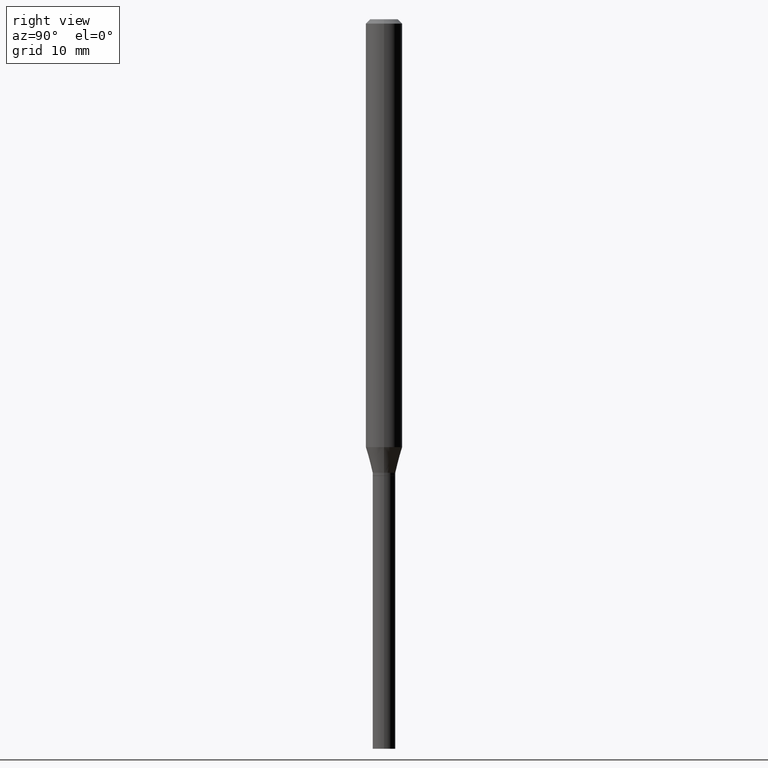
[diagram: clean part render]
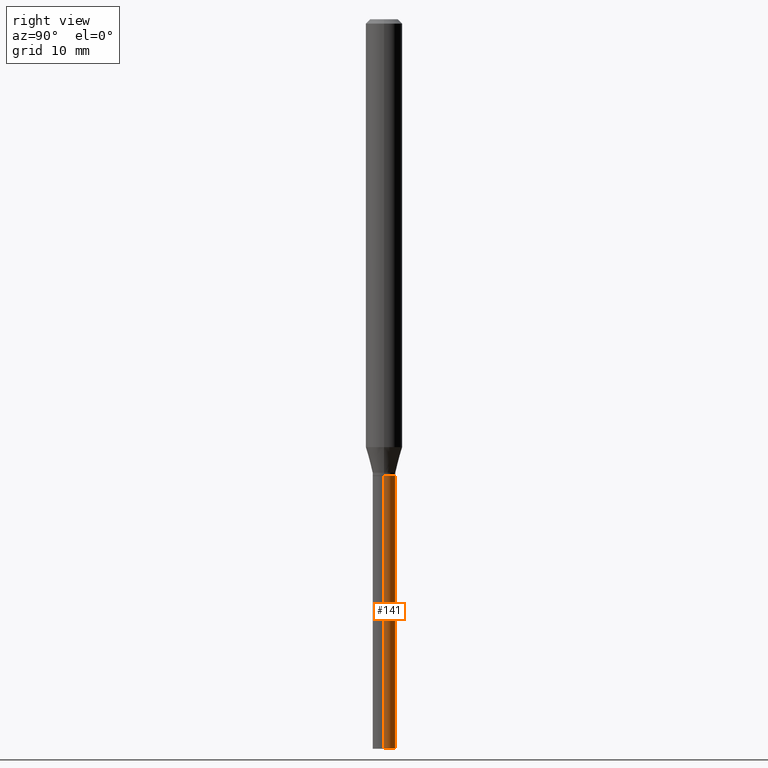
[diagram: same view with one face highlighted and labeled with its STEP entity id]
A machine part, right view. The second image highlights one B-rep face of the part: STEP entity #141.
In plain terms, the highlighted cylindrical surface (edge-blend (fillet) strip) has radius 0.9906 mm, axis along (-0, 0, 1).
Its self-contained STEP definition (entity closure, byte-faithful):
#4 = VERTEX_POINT ( 'NONE', #256 ) ;
#24 = CARTESIAN_POINT ( 'NONE',  ( 0.03899999999999999994, -2.723355444297643682E-16, 1.901708942560414931E-30 ) ) ;
#28 = AXIS2_PLACEMENT_3D ( 'NONE', #63, #463, #202 ) ;
#46 = CARTESIAN_POINT ( 'NONE',  ( -0.03899999999999999994, -6.817578413582832808E-15, -2.500000000000000000 ) ) ;
#59 = CARTESIAN_POINT ( 'NONE',  ( 0.000000000000000000, 0.000000000000000000, 0.000000000000000000 ) ) ;
#63 = CARTESIAN_POINT ( 'NONE',  ( 3.824713212873553776E-29, -5.460676813950680100E-15, -1.564000000000000057 ) ) ;
#75 = VERTEX_POINT ( 'NONE', #236 ) ;
#89 = EDGE_CURVE ( 'NONE', #220, #75, #392, .T. ) ;
#90 = FACE_OUTER_BOUND ( 'NONE', #189, .T. ) ;
#97 = CARTESIAN_POINT ( 'NONE',  ( 6.113672015462842613E-29, -8.728703347107864943E-15, -2.500000000000000000 ) ) ;
#103 = VECTOR ( 'NONE', #167, 39.37007874015748143 ) ;
#114 = EDGE_CURVE ( 'NONE', #4, #220, #229, .T. ) ;
#125 = ORIENTED_EDGE ( 'NONE', *, *, #259, .T. ) ;
#129 = DIRECTION ( 'NONE',  ( 1.000000000000000000, -6.982962677686265922E-15, 4.876176775795935793E-29 ) ) ;
#141 = ADVANCED_FACE ( 'NONE', ( #90 ), #412, .T. ) ;
#160 = VECTOR ( 'NONE', #325, 39.37007874015748143 ) ;
#167 = DIRECTION ( 'NONE',  ( -2.445468806185136877E-29, 3.491481338843145188E-15, 1.000000000000000000 ) ) ;
#172 = DIRECTION ( 'NONE',  ( 1.000000000000000000, -6.982962677686283277E-15, 0.000000000000000000 ) ) ;
#189 = EDGE_LOOP ( 'NONE', ( #125, #366, #207, #361 ) ) ;
#202 = DIRECTION ( 'NONE',  ( 1.000000000000000000, -6.982962677686258033E-15, 0.000000000000000000 ) ) ;
#207 = ORIENTED_EDGE ( 'NONE', *, *, #89, .F. ) ;
#220 = VERTEX_POINT ( 'NONE', #421 ) ;
#229 = LINE ( 'NONE', #24, #103 ) ;
#236 = CARTESIAN_POINT ( 'NONE',  ( -0.03899999999999999994, -6.817578413582832808E-15, -1.564000000000000057 ) ) ;
#238 = CIRCLE ( 'NONE', #322, 0.03899999999999999994 ) ;
#252 = AXIS2_PLACEMENT_3D ( 'NONE', #59, #374, #129 ) ;
#256 = CARTESIAN_POINT ( 'NONE',  ( 0.03899999999999999994, -9.001038891537628966E-15, -2.500000000000000000 ) ) ;
#259 = EDGE_CURVE ( 'NONE', #4, #293, #238, .T. ) ;
#281 = LINE ( 'NONE', #357, #160 ) ;
#293 = VERTEX_POINT ( 'NONE', #46 ) ;
#302 = EDGE_CURVE ( 'NONE', #293, #75, #281, .T. ) ;
#322 = AXIS2_PLACEMENT_3D ( 'NONE', #97, #379, #172 ) ;
#325 = DIRECTION ( 'NONE',  ( -2.445468806185136877E-29, 3.491481338843145188E-15, 1.000000000000000000 ) ) ;
#357 = CARTESIAN_POINT ( 'NONE',  ( -0.03899999999999999994, 2.771116669464390721E-16, -1.918384685199413078E-30 ) ) ;
#361 = ORIENTED_EDGE ( 'NONE', *, *, #114, .F. ) ;
#366 = ORIENTED_EDGE ( 'NONE', *, *, #302, .T. ) ;
#374 = DIRECTION ( 'NONE',  ( -2.445468806185136597E-29, 3.491481338843145583E-15, 1.000000000000000000 ) ) ;
#379 = DIRECTION ( 'NONE',  ( -2.445468806185136597E-29, 3.491481338843145583E-15, 1.000000000000000000 ) ) ;
#392 = CIRCLE ( 'NONE', #28, 0.03899999999999999994 ) ;
#412 = CYLINDRICAL_SURFACE ( 'NONE', #252, 0.03899999999999999994 ) ;
#421 = CARTESIAN_POINT ( 'NONE',  ( 0.03899999999999999994, -5.733012358380444123E-15, -1.564000000000000057 ) ) ;
#463 = DIRECTION ( 'NONE',  ( -2.445468806185136597E-29, 3.491481338843145583E-15, 1.000000000000000000 ) ) ;